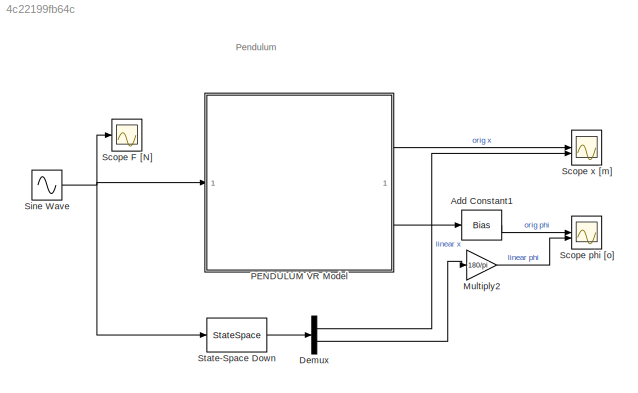
MODEL slx_4c22199fb64c
KIND model
CONFIG AbsTol = auto
CONFIG EnableMultiTasking = on
CONFIG FixedStep = auto
CONFIG InitFcn = g = 9.81; %gravitational constant\n\n%% S-function\n% showVR = 0;\n% CartBlocking = 0;\n% CartHard = 0;\n% phi0 = 0; %initial conditions
CONFIG MaxStep = 1e-2
CONFIG MinStep = auto
CONFIG RelTol = 1e-3
CONFIG SampleTimeConstraint = Unconstrained
CONFIG SolverName = ode45
CONFIG StartTime = 0.0
CONFIG StopTime = 20
BLOCK [Bias] Add Constant1
  Bias = 90
  SaturateOnIntegerOverflow = off
BLOCK [Demux] Demux
  Outputs = 2
BLOCK [Gain] Multiply2
  Gain = 180/pi
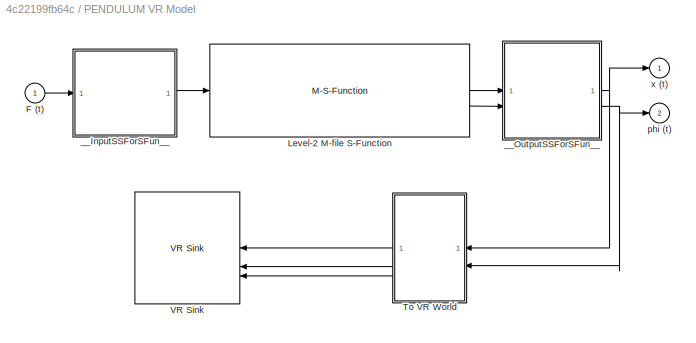
BLOCK [SubSystem] PENDULUM VR Model
BLOCK [Inport] PENDULUM VR Model/F (t)
BLOCK [M-S-Function] PENDULUM VR Model/Level-2 M-file S-Function
  FunctionName = pendulum_msfcn
  Parameters = y0, phi0, rail_bound, brake
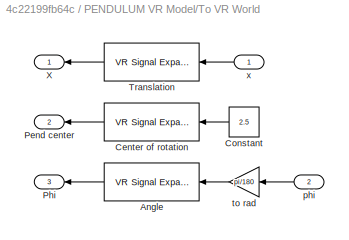
BLOCK [SubSystem] PENDULUM VR Model/To VR World
BLOCK [Reference] PENDULUM VR Model/To VR World/Angle  REF=vrlib/VR Signal Expander
  NameLocation = top
  SourceBlock = vrlib/VR Signal Expander
  SourceType = VR Signal Expander
BLOCK [Reference] PENDULUM VR Model/To VR World/Center of rotation  REF=vrlib/VR Signal Expander
  NameLocation = top
  SourceBlock = vrlib/VR Signal Expander
  SourceType = VR Signal Expander
BLOCK [Constant] PENDULUM VR Model/To VR World/Constant
  NameLocation = top
  Value = 2.5
BLOCK [Outport] PENDULUM VR Model/To VR World/Pend center
  Port = 2
BLOCK [Outport] PENDULUM VR Model/To VR World/Phi
  Port = 3
BLOCK [Reference] PENDULUM VR Model/To VR World/Translation  REF=vrlib/VR Signal Expander
  NameLocation = top
  SourceBlock = vrlib/VR Signal Expander
  SourceType = VR Signal Expander
BLOCK [Outport] PENDULUM VR Model/To VR World/X
BLOCK [Inport] PENDULUM VR Model/To VR World/phi
  Port = 2
BLOCK [Gain] PENDULUM VR Model/To VR World/to rad
  Gain = pi/180
BLOCK [Inport] PENDULUM VR Model/To VR World/x
BLOCK [Reference] PENDULUM VR Model/VR Sink  REF=vrlib/VR Sink
  InstantiateOnLoad = on
  SourceBlock = vrlib/VR Sink
  SourceType = Virtual Reality Sink
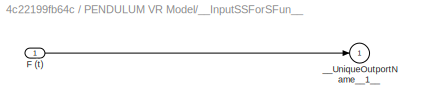
BLOCK [SubSystem] PENDULUM VR Model/__InputSSForSFun__
  PermitHierarchicalResolution = ExplicitOnly
BLOCK [Inport] PENDULUM VR Model/__InputSSForSFun__/F (t)
BLOCK [Outport] PENDULUM VR Model/__InputSSForSFun__/__UniqueOutportName__1__
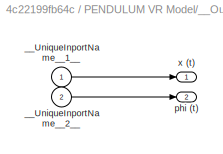
BLOCK [SubSystem] PENDULUM VR Model/__OutputSSForSFun__
  PermitHierarchicalResolution = ExplicitOnly
BLOCK [Inport] PENDULUM VR Model/__OutputSSForSFun__/__UniqueInportName__1__
BLOCK [Inport] PENDULUM VR Model/__OutputSSForSFun__/__UniqueInportName__2__
  Port = 2
BLOCK [Outport] PENDULUM VR Model/__OutputSSForSFun__/phi (t)
  OutDataTypeStr = double
  Port = 2
  PortDimensions = 1
  SampleTime = [-1 0]
  SignalType = real
BLOCK [Outport] PENDULUM VR Model/__OutputSSForSFun__/x (t)
  OutDataTypeStr = double
  PortDimensions = 1
  SampleTime = [-1 0]
  SignalType = real
BLOCK [Outport] PENDULUM VR Model/phi (t)
  OutDataTypeStr = double
  Port = 2
  PortDimensions = 1
  SampleTime = [-1 0]
  SignalType = real
BLOCK [Outport] PENDULUM VR Model/x (t)
  OutDataTypeStr = double
  PortDimensions = 1
  SampleTime = [-1 0]
  SignalType = real
BLOCK [Scope] Scope F [N]
  Floating = off
  NumInputPorts = 1
  ScopeSpecificationString = Simulink.scopes.TimeScopeBlockCfg('CurrentConfiguration', extmgr.ConfigurationSet(extmgr.Configuration('Core','General UI',true),extmgr.Configuration('Core','Source UI',true),extmgr.Configuration('Sources','WiredSimulink',true,'DataLogging',true,'DataLoggingVariableName','tu','DataLoggingLimitDataPoints',true,'DataLoggingMaxPoints','5000000','DataLoggingDecimateData',true,'DataLoggingDecimation','...<+1802ch>
BLOCK [Scope] Scope phi [o]
  Floating = off
  NumInputPorts = 2
  ScopeSpecificationString = Simulink.scopes.TimeScopeBlockCfg('CurrentConfiguration', extmgr.ConfigurationSet(extmgr.Configuration('Core','General UI',true),extmgr.Configuration('Core','Source UI',true),extmgr.Configuration('Sources','WiredSimulink',true,'DataLogging',true,'DataLoggingVariableName','ty','DataLoggingLimitDataPoints',true,'DataLoggingMaxPoints','5000000','DataLoggingDecimateData',true,'DataLoggingDecimation','...<+1803ch>
BLOCK [Scope] Scope x [m]
  Floating = off
  NumInputPorts = 2
  ScopeSpecificationString = Simulink.scopes.TimeScopeBlockCfg('CurrentConfiguration', extmgr.ConfigurationSet(extmgr.Configuration('Core','General UI',true,'FigureColor',[0 0 0]),extmgr.Configuration('Core','Source UI',true),extmgr.Configuration('Sources','WiredSimulink',true,'DataLogging',true,'DataLoggingVariableName','tyx','DataLoggingLimitDataPoints',true,'DataLoggingDecimateData',true,'DataLoggingDecimation','1'),extmgr...<+2100ch>
BLOCK [Sin] Sine Wave
  Amplitude = 10
  SampleTime = 0
BLOCK [StateSpace] State-Space Down
  A = A_down
  B = B_down
  C = C
  D = D
  InitialCondition = [0; 0; 0; 0]
ANNOTATION (root): Pendulum
LINE Add Constant1:1 -> Scope phi [o]:1
LINE Demux:1 -> Scope x [m]:2
LINE Demux:2 -> Multiply2:1
LINE Multiply2:1 -> Scope phi [o]:2
LINE PENDULUM VR Model/F (t):1 -> PENDULUM VR Model/__InputSSForSFun__:1
LINE PENDULUM VR Model/Level-2 M-file S-Function:1 -> PENDULUM VR Model/__OutputSSForSFun__:1
LINE PENDULUM VR Model/Level-2 M-file S-Function:2 -> PENDULUM VR Model/__OutputSSForSFun__:2
LINE PENDULUM VR Model/To VR World/Angle:1 -> PENDULUM VR Model/To VR World/Phi:1
LINE PENDULUM VR Model/To VR World/Center of rotation:1 -> PENDULUM VR Model/To VR World/Pend center:1
LINE PENDULUM VR Model/To VR World/Constant:1 -> PENDULUM VR Model/To VR World/Center of rotation:1
LINE PENDULUM VR Model/To VR World/Translation:1 -> PENDULUM VR Model/To VR World/X:1
LINE PENDULUM VR Model/To VR World/phi:1 -> PENDULUM VR Model/To VR World/to rad:1
LINE PENDULUM VR Model/To VR World/to rad:1 -> PENDULUM VR Model/To VR World/Angle:1
LINE PENDULUM VR Model/To VR World/x:1 -> PENDULUM VR Model/To VR World/Translation:1
LINE PENDULUM VR Model/To VR World:1 -> PENDULUM VR Model/VR Sink:1
LINE PENDULUM VR Model/To VR World:2 -> PENDULUM VR Model/VR Sink:2
LINE PENDULUM VR Model/To VR World:3 -> PENDULUM VR Model/VR Sink:3
LINE PENDULUM VR Model/__InputSSForSFun__/F (t):1 -> PENDULUM VR Model/__InputSSForSFun__/__UniqueOutportName__1__:1
LINE PENDULUM VR Model/__InputSSForSFun__:1 -> PENDULUM VR Model/Level-2 M-file S-Function:1
LINE PENDULUM VR Model/__OutputSSForSFun__/__UniqueInportName__1__:1 -> PENDULUM VR Model/__OutputSSForSFun__/x (t):1
LINE PENDULUM VR Model/__OutputSSForSFun__/__UniqueInportName__2__:1 -> PENDULUM VR Model/__OutputSSForSFun__/phi (t):1
NET PENDULUM VR Model/__OutputSSForSFun__:1 -> PENDULUM VR Model/To VR World:1, PENDULUM VR Model/x (t):1
NET PENDULUM VR Model/__OutputSSForSFun__:2 -> PENDULUM VR Model/To VR World:2, PENDULUM VR Model/phi (t):1
LINE PENDULUM VR Model:1 -> Scope x [m]:1
LINE PENDULUM VR Model:2 -> Add Constant1:1
NET Sine Wave:1 -> PENDULUM VR Model:1, Scope F [N]:1, State-Space Down:1
LINE State-Space Down:1 -> Demux:1
note: NET lines group one-source signal fan-out (src -> all destinations, sorted); 1:1 wires keep LINE
